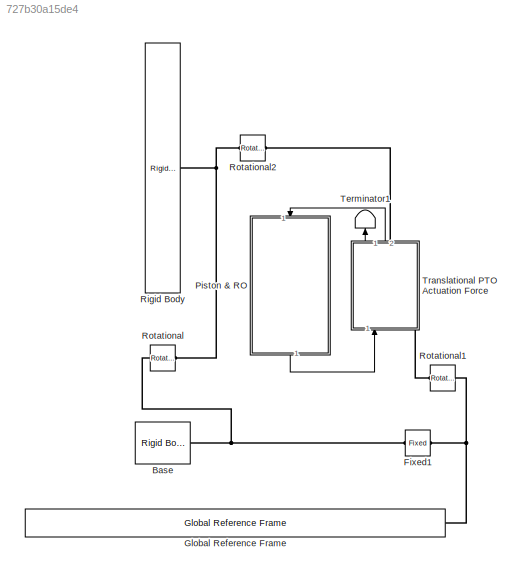
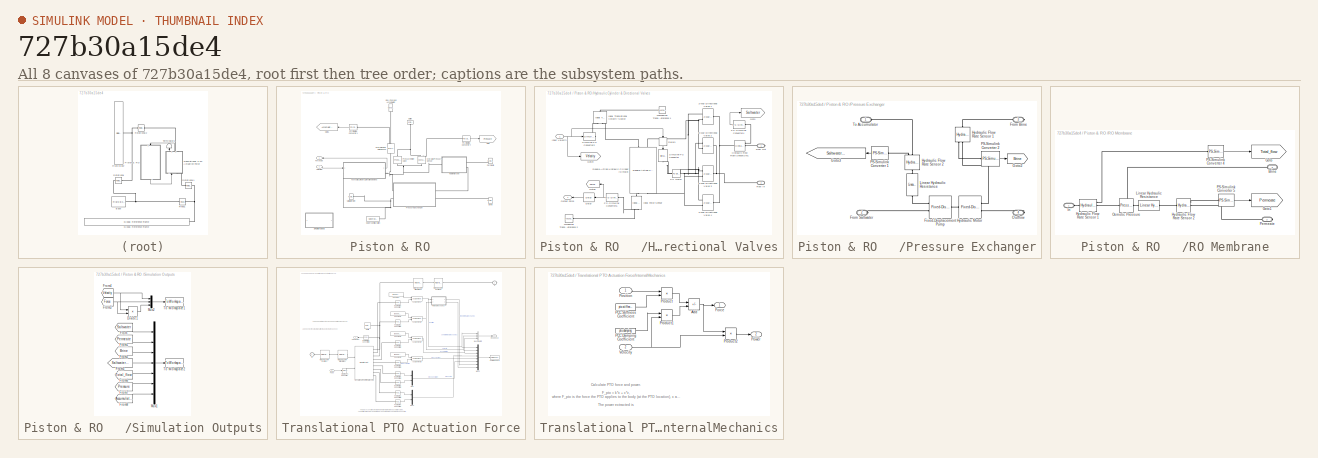
[diagram: thumbnail index - all 8 canvases of the model, root first then tree order]
MODEL slx_727b30a15de4
KIND model
CONFIG AbsTol = 1e-3
CONFIG EnableMultiTasking = on
CONFIG FixedStep = 0.01
CONFIG MaxStep = 0.01
CONFIG MinStep = auto
CONFIG RelTol = 1e-3
CONFIG SampleTimeConstraint = Unconstrained
CONFIG SolverName = ode4
CONFIG StartTime = 0
CONFIG StopTime = 300
BLOCK [Reference] Base  REF=WECSim_Lib_Body_Elements/Rigid Body
  AttributesFormatString = %<body>
  Ports = [0, 0, 0, 0, 0, 0, 1]
  SourceBlock = WECSim_Lib_Body_Elements/Rigid Body
  SourceType = Rigid Body
BLOCK [Reference] Fixed1  REF=WECSim_Lib_Constraints/Fixed
  AttributesFormatString = %<constraint>
  Ports = [0, 0, 0, 0, 0, 1, 1]
  SourceBlock = WECSim_Lib_Constraints/Fixed
  SourceType = Constraints
BLOCK [Reference] Global Reference Frame  REF=WECSim_Lib_Frames/Global Reference Frame
  Ports = [0, 0, 0, 0, 0, 0, 1]
  SourceBlock = WECSim_Lib_Frames/Global Reference Frame
  SourceType = Frames
BLOCK [SubSystem] Piston & RO   
  NameLocation = left
  Ports = [1, 1]
BLOCK [Reference] Piston & RO   /Brine   REF=fl_lib/Hydraulic/Hydraulic Elements/Hydraulic Reference
  Ports = [0, 0, 0, 0, 0, 1]
  SourceBlock = fl_lib/Hydraulic/Hydraulic Elements/Hydraulic Reference
  SourceType = Hydraulic Reference
BLOCK [Outport] Piston & RO   /Force Out
  NameLocation = top
  VectorParamsAs1DForOutWhenUnconnected = off
BLOCK [Reference] Piston & RO   /Gas-Charged Accumulator  REF=sh_lib/Accumulators/Gas-Charged
Accumulator
  NameLocation = right
  Ports = [0, 0, 0, 0, 0, 0, 1]
  SourceBlock = sh_lib/Accumulators/Gas-Charged\nAccumulator
  SourceType = Gas-Charged\nAccumulator
BLOCK [Goto] Piston & RO   /Goto
  GotoTag = Pressure
  TagVisibility = global
BLOCK [Goto] Piston & RO   /Goto1
  GotoTag = Accumulator
  TagVisibility = global
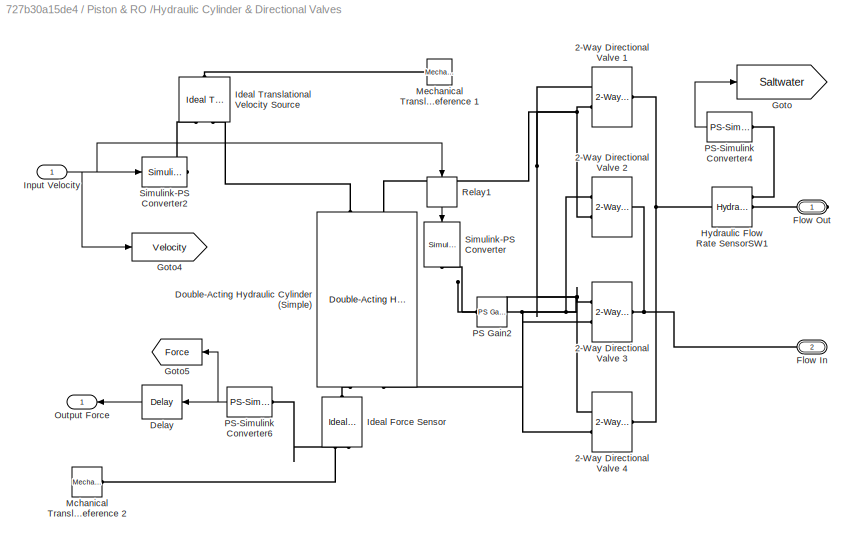
BLOCK [SubSystem] Piston & RO   /Hydraulic Cylinder & Directional Valves
  Ports = [1, 1, 0, 0, 0, 1, 1]
BLOCK [Reference] Piston & RO   /Hydraulic Cylinder & Directional Valves/2-Way Directional Valve 1  REF=sh_lib/Valves/Directional Valves/2-Way Directional
Valve
  Ports = [0, 0, 0, 0, 0, 2, 1]
  SourceBlock = sh_lib/Valves/Directional Valves/2-Way Directional\nValve
  SourceType = 2-Way Directional\nValve
BLOCK [Reference] Piston & RO   /Hydraulic Cylinder & Directional Valves/2-Way Directional Valve 2  REF=sh_lib/Valves/Directional Valves/2-Way Directional
Valve
  Ports = [0, 0, 0, 0, 0, 2, 1]
  SourceBlock = sh_lib/Valves/Directional Valves/2-Way Directional\nValve
  SourceType = 2-Way Directional\nValve
BLOCK [Reference] Piston & RO   /Hydraulic Cylinder & Directional Valves/2-Way Directional Valve 3  REF=sh_lib/Valves/Directional Valves/2-Way Directional
Valve
  Ports = [0, 0, 0, 0, 0, 2, 1]
  SourceBlock = sh_lib/Valves/Directional Valves/2-Way Directional\nValve
  SourceType = 2-Way Directional\nValve
BLOCK [Reference] Piston & RO   /Hydraulic Cylinder & Directional Valves/2-Way Directional Valve 4  REF=sh_lib/Valves/Directional Valves/2-Way Directional
Valve
  Ports = [0, 0, 0, 0, 0, 2, 1]
  SourceBlock = sh_lib/Valves/Directional Valves/2-Way Directional\nValve
  SourceType = 2-Way Directional\nValve
BLOCK [Delay] Piston & RO   /Hydraulic Cylinder & Directional Valves/Delay
  DelayLength = 1
  InitialCondition = 0
  InputPortMap = u0
  Ports = [1, 1]
BLOCK [Reference] Piston & RO   /Hydraulic Cylinder & Directional Valves/Double-Acting Hydraulic Cylinder (Simple)  REF=sh_lib/Hydraulic Cylinders/Double-Acting
Hydraulic Cylinder
(Simple)
  NameLocation = left
  Ports = [0, 0, 0, 0, 0, 2, 2]
  SourceBlock = sh_lib/Hydraulic Cylinders/Double-Acting\nHydraulic Cylinder\n(Simple)
  SourceType = Double-Acting\nHydraulic Cylinder\n(Simple)
BLOCK [PMIOPort] Piston & RO   /Hydraulic Cylinder & Directional Valves/Flow In
  NameLocation = top
  Port = 2
  Side = Left
BLOCK [PMIOPort] Piston & RO   /Hydraulic Cylinder & Directional Valves/Flow Out
  Side = Right
BLOCK [Goto] Piston & RO   /Hydraulic Cylinder & Directional Valves/Goto
  GotoTag = Saltwater
  TagVisibility = global
BLOCK [Goto] Piston & RO   /Hydraulic Cylinder & Directional Valves/Goto4
  GotoTag = Velocity
  TagVisibility = global
BLOCK [Goto] Piston & RO   /Hydraulic Cylinder & Directional Valves/Goto5
  GotoTag = Force
  NameLocation = top
  TagVisibility = global
BLOCK [Reference] Piston & RO   /Hydraulic Cylinder & Directional Valves/Hydraulic Flow Rate SensorSW1  REF=fl_lib/Hydraulic/Hydraulic Sensors/Hydraulic Flow Rate
Sensor
  Ports = [0, 0, 0, 0, 0, 1, 3]
  SourceBlock = fl_lib/Hydraulic/Hydraulic Sensors/Hydraulic Flow Rate\nSensor
  SourceType = Hydraulic Flow Rate\nSensor
BLOCK [Reference] Piston & RO   /Hydraulic Cylinder & Directional Valves/Ideal Force Sensor  REF=fl_lib/Mechanical/Mechanical Sensors/Ideal Force Sensor
  NameLocation = right
  Ports = [0, 0, 0, 0, 0, 1, 2]
  SourceBlock = fl_lib/Mechanical/Mechanical Sensors/Ideal Force Sensor
  SourceType = Ideal Force Sensor
BLOCK [Reference] Piston & RO   /Hydraulic Cylinder & Directional Valves/Ideal Translational Velocity Source  REF=fl_lib/Mechanical/Mechanical Sources/Ideal Translational
Velocity Source
  NameLocation = right
  Ports = [0, 0, 0, 0, 0, 1, 2]
  SourceBlock = fl_lib/Mechanical/Mechanical Sources/Ideal Translational\nVelocity Source
  SourceType = Ideal Translational\nVelocity Source
BLOCK [Inport] Piston & RO   /Hydraulic Cylinder & Directional Valves/Input Velocity
BLOCK [Reference] Piston & RO   /Hydraulic Cylinder & Directional Valves/Mchanical Translational Reference 2  REF=fl_lib/Mechanical/Translational
Elements/Mechanical
Translational
Reference
  NameLocation = top
  Ports = [0, 0, 0, 0, 0, 1]
  SourceBlock = fl_lib/Mechanical/Translational\nElements/Mechanical\nTranslational\nReference
  SourceType = Mechanical\nTranslational\nReference
BLOCK [Reference] Piston & RO   /Hydraulic Cylinder & Directional Valves/Mechanical Translational Reference 1  REF=fl_lib/Mechanical/Translational
Elements/Mechanical
Translational
Reference
  Ports = [0, 0, 0, 0, 0, 1]
  SourceBlock = fl_lib/Mechanical/Translational\nElements/Mechanical\nTranslational\nReference
  SourceType = Mechanical\nTranslational\nReference
BLOCK [Outport] Piston & RO   /Hydraulic Cylinder & Directional Valves/Output Force
  NameLocation = top
  VectorParamsAs1DForOutWhenUnconnected = off
BLOCK [Reference] Piston & RO   /Hydraulic Cylinder & Directional Valves/PS Gain2  REF=fl_ps_legacy_lib/Legacy Physical
Signals/Functions/PS Gain
  Ports = [0, 0, 0, 0, 0, 1, 1]
  SourceBlock = fl_ps_legacy_lib/Legacy Physical\nSignals/Functions/PS Gain
  SourceType = PS Gain
BLOCK [Reference] Piston & RO   /Hydraulic Cylinder & Directional Valves/PS-Simulink Converter4  REF=nesl_utility/PS-Simulink
Converter
  Ports = [0, 1, 0, 0, 0, 1]
  SourceBlock = nesl_utility/PS-Simulink\nConverter
  SourceType = PS-Simulink\nConverter
BLOCK [Reference] Piston & RO   /Hydraulic Cylinder & Directional Valves/PS-Simulink Converter6  REF=nesl_utility/PS-Simulink
Converter
  Ports = [0, 1, 0, 0, 0, 1]
  SourceBlock = nesl_utility/PS-Simulink\nConverter
  SourceType = PS-Simulink\nConverter
BLOCK [Relay] Piston & RO   /Hydraulic Cylinder & Directional Valves/Relay1
  NameLocation = right
  OffOutputValue = -1
  OffSwitchValue = 0
  OnSwitchValue = 0
  ZeroCross = off
BLOCK [Reference] Piston & RO   /Hydraulic Cylinder & Directional Valves/Simulink-PS Converter  REF=nesl_utility/Simulink-PS
Converter
  NameLocation = right
  Ports = [1, 0, 0, 0, 0, 0, 1]
  SourceBlock = nesl_utility/Simulink-PS\nConverter
  SourceType = Simulink-PS\nConverter
BLOCK [Reference] Piston & RO   /Hydraulic Cylinder & Directional Valves/Simulink-PS Converter2  REF=nesl_utility/Simulink-PS
Converter
  Ports = [1, 0, 0, 0, 0, 0, 1]
  SourceBlock = nesl_utility/Simulink-PS\nConverter
  SourceType = Simulink-PS\nConverter
BLOCK [Reference] Piston & RO   /Hydraulic Flow Rate Sensor  REF=fl_lib/Hydraulic/Hydraulic Sensors/Hydraulic Flow Rate
Sensor
  NameLocation = left
  Ports = [0, 0, 0, 0, 0, 1, 3]
  SourceBlock = fl_lib/Hydraulic/Hydraulic Sensors/Hydraulic Flow Rate\nSensor
  SourceType = Hydraulic Flow Rate\nSensor
BLOCK [Reference] Piston & RO   /Hydraulic Pressure Sensor  REF=fl_lib/Hydraulic/Hydraulic Sensors/Hydraulic Pressure
Sensor
  NameLocation = right
  Ports = [0, 0, 0, 0, 0, 1, 2]
  SourceBlock = fl_lib/Hydraulic/Hydraulic Sensors/Hydraulic Pressure\nSensor
  SourceType = Hydraulic Pressure\nSensor
BLOCK [Reference] Piston & RO   /Outlet  REF=fl_lib/Hydraulic/Hydraulic Elements/Hydraulic Reference
  NameLocation = left
  Ports = [0, 0, 0, 0, 0, 1]
  SourceBlock = fl_lib/Hydraulic/Hydraulic Elements/Hydraulic Reference
  SourceType = Hydraulic Reference
BLOCK [Reference] Piston & RO   /PS-Simulink Converter1  REF=nesl_utility/PS-Simulink
Converter
  Ports = [0, 1, 0, 0, 0, 1]
  SourceBlock = nesl_utility/PS-Simulink\nConverter
  SourceType = PS-Simulink\nConverter
BLOCK [Reference] Piston & RO   /PS-Simulink Converter4  REF=nesl_utility/PS-Simulink
Converter
  Ports = [0, 1, 0, 0, 0, 1]
  SourceBlock = nesl_utility/PS-Simulink\nConverter
  SourceType = PS-Simulink\nConverter
BLOCK [Reference] Piston & RO   /Permeate  REF=fl_lib/Hydraulic/Hydraulic Elements/Hydraulic Reference
  NameLocation = top
  Ports = [0, 0, 0, 0, 0, 1]
  SourceBlock = fl_lib/Hydraulic/Hydraulic Elements/Hydraulic Reference
  SourceType = Hydraulic Reference
BLOCK [SubSystem] Piston & RO   /Pressure Exchanger
  Ports = [0, 0, 0, 0, 0, 2, 2]
BLOCK [Reference] Piston & RO   /Pressure Exchanger/Fixed-Displacement Pump  REF=sh_lib/Pumps and Motors/Fixed-Displacement
Pump
  Ports = [0, 0, 0, 0, 0, 1, 2]
  SourceBlock = sh_lib/Pumps and Motors/Fixed-Displacement\nPump
  SourceType = Fixed-Displacement\nPump
BLOCK [PMIOPort] Piston & RO   /Pressure Exchanger/From Brine
  Port = 3
  Side = Right
BLOCK [PMIOPort] Piston & RO   /Pressure Exchanger/From Saltwater
  NameLocation = top
  Port = 2
  Side = Left
BLOCK [Goto] Piston & RO   /Pressure Exchanger/Goto2
  GotoTag = Brine
  TagVisibility = global
BLOCK [Goto] Piston & RO   /Pressure Exchanger/Goto3
  GotoTag = Saltwater_in_PE
  NameLocation = top
  TagVisibility = global
BLOCK [Reference] Piston & RO   /Pressure Exchanger/Hydraulic Flow Rate Sensor 1  REF=fl_lib/Hydraulic/Hydraulic Sensors/Hydraulic Flow Rate
Sensor
  NameLocation = left
  Ports = [0, 0, 0, 0, 0, 1, 3]
  SourceBlock = fl_lib/Hydraulic/Hydraulic Sensors/Hydraulic Flow Rate\nSensor
  SourceType = Hydraulic Flow Rate\nSensor
BLOCK [Reference] Piston & RO   /Pressure Exchanger/Hydraulic Flow Rate Sensor 2  REF=fl_lib/Hydraulic/Hydraulic Sensors/Hydraulic Flow Rate
Sensor
  NameLocation = right
  Ports = [0, 0, 0, 0, 0, 1, 3]
  SourceBlock = fl_lib/Hydraulic/Hydraulic Sensors/Hydraulic Flow Rate\nSensor
  SourceType = Hydraulic Flow Rate\nSensor
BLOCK [Reference] Piston & RO   /Pressure Exchanger/Hydraulic Motor  REF=sh_lib/Pumps and Motors/Fixed-Displacement
Motor
  NameLocation = top
  Ports = [0, 0, 0, 0, 0, 2, 1]
  SourceBlock = sh_lib/Pumps and Motors/Fixed-Displacement\nMotor
  SourceType = Fixed-Displacement\nMotor
BLOCK [Reference] Piston & RO   /Pressure Exchanger/Linear Hydraulic Resistance  REF=fl_lib/Hydraulic/Hydraulic Elements/Linear Hydraulic
Resistance
  NameLocation = left
  Ports = [0, 0, 0, 0, 0, 1, 1]
  SourceBlock = fl_lib/Hydraulic/Hydraulic Elements/Linear Hydraulic\nResistance
  SourceType = Linear Hydraulic\nResistance
BLOCK [PMIOPort] Piston & RO   /Pressure Exchanger/Outflow
  NameLocation = top
  Port = 4
  Side = Right
BLOCK [Reference] Piston & RO   /Pressure Exchanger/PS-Simulink Converter 1  REF=nesl_utility/PS-Simulink
Converter
  Ports = [0, 1, 0, 0, 0, 1]
  SourceBlock = nesl_utility/PS-Simulink\nConverter
  SourceType = PS-Simulink\nConverter
BLOCK [Reference] Piston & RO   /Pressure Exchanger/PS-Simulink Converter 2  REF=nesl_utility/PS-Simulink
Converter
  NameLocation = top
  Ports = [0, 1, 0, 0, 0, 1]
  SourceBlock = nesl_utility/PS-Simulink\nConverter
  SourceType = PS-Simulink\nConverter
BLOCK [PMIOPort] Piston & RO   /Pressure Exchanger/To Accumulator
  Side = Left
BLOCK [Reference] Piston & RO   /Pressure Relief Valve  REF=sh_lib/Valves/Pressure Control
Valves/Pressure Relief
Valve
  NameLocation = right
  Ports = [0, 0, 0, 0, 0, 1, 1]
  SourceBlock = sh_lib/Valves/Pressure Control\nValves/Pressure Relief\nValve
  SourceType = Pressure Relief\nValve
BLOCK [SubSystem] Piston & RO   /RO Membrane
  Ports = [0, 0, 0, 0, 0, 1, 2]
BLOCK [PMIOPort] Piston & RO   /RO Membrane/Brine
  NameLocation = top
  Port = 3
  Side = Right
BLOCK [Goto] Piston & RO   /RO Membrane/Goto
  GotoTag = Total_flow
  TagVisibility = global
BLOCK [Goto] Piston & RO   /RO Membrane/Goto1
  GotoTag = Permeate
  TagVisibility = global
BLOCK [Reference] Piston & RO   /RO Membrane/Hydraulic Flow Rate Sensor 1  REF=fl_lib/Hydraulic/Hydraulic Sensors/Hydraulic Flow Rate
Sensor
  Ports = [0, 0, 0, 0, 0, 1, 3]
  SourceBlock = fl_lib/Hydraulic/Hydraulic Sensors/Hydraulic Flow Rate\nSensor
  SourceType = Hydraulic Flow Rate\nSensor
BLOCK [Reference] Piston & RO   /RO Membrane/Hydraulic Flow Rate Sensor 2  REF=fl_lib/Hydraulic/Hydraulic Sensors/Hydraulic Flow Rate
Sensor
  Ports = [0, 0, 0, 0, 0, 1, 3]
  SourceBlock = fl_lib/Hydraulic/Hydraulic Sensors/Hydraulic Flow Rate\nSensor
  SourceType = Hydraulic Flow Rate\nSensor
BLOCK [PMIOPort] Piston & RO   /RO Membrane/In
  Side = Left
BLOCK [Reference] Piston & RO   /RO Membrane/Linear Hydraulic Resistance  REF=fl_lib/Hydraulic/Hydraulic Elements/Linear Hydraulic
Resistance
  Ports = [0, 0, 0, 0, 0, 1, 1]
  SourceBlock = fl_lib/Hydraulic/Hydraulic Elements/Linear Hydraulic\nResistance
  SourceType = Linear Hydraulic\nResistance
BLOCK [Reference] Piston & RO   /RO Membrane/Osmotic Pressure  REF=sh_lib/Valves/Pressure Control
Valves/Pressure Relief
Valve
  NameLocation = top
  Ports = [0, 0, 0, 0, 0, 1, 1]
  SourceBlock = sh_lib/Valves/Pressure Control\nValves/Pressure Relief\nValve
  SourceType = Pressure Relief\nValve
BLOCK [Reference] Piston & RO   /RO Membrane/PS-Simulink Converter 4  REF=nesl_utility/PS-Simulink
Converter
  NameLocation = top
  Ports = [0, 1, 0, 0, 0, 1]
  SourceBlock = nesl_utility/PS-Simulink\nConverter
  SourceType = PS-Simulink\nConverter
BLOCK [Reference] Piston & RO   /RO Membrane/PS-Simulink Converter 5  REF=nesl_utility/PS-Simulink
Converter
  NameLocation = top
  Ports = [0, 1, 0, 0, 0, 1]
  SourceBlock = nesl_utility/PS-Simulink\nConverter
  SourceType = PS-Simulink\nConverter
BLOCK [PMIOPort] Piston & RO   /RO Membrane/Permeate
  Port = 2
  Side = Right
BLOCK [Reference] Piston & RO   /Saltwater Inlet  REF=fl_lib/Hydraulic/Hydraulic Elements/Hydraulic Reference
  Ports = [0, 0, 0, 0, 0, 1]
  SourceBlock = fl_lib/Hydraulic/Hydraulic Elements/Hydraulic Reference
  SourceType = Hydraulic Reference
BLOCK [SubSystem] Piston & RO   /Simulation Outputs
  Ports = []
BLOCK [Product] Piston & RO   /Simulation Outputs/Divide1
  Inputs = **
  Ports = [2, 1]
BLOCK [From] Piston & RO   /Simulation Outputs/From
  GotoTag = Saltwater
  TagVisibility = global
BLOCK [From] Piston & RO   /Simulation Outputs/From1
  GotoTag = Permeate
  TagVisibility = global
BLOCK [From] Piston & RO   /Simulation Outputs/From2
  GotoTag = Brine
  TagVisibility = global
BLOCK [From] Piston & RO   /Simulation Outputs/From3
  GotoTag = Saltwater_in_PE
  TagVisibility = global
BLOCK [From] Piston & RO   /Simulation Outputs/From4
  GotoTag = Velocity
  TagVisibility = global
BLOCK [From] Piston & RO   /Simulation Outputs/From5
  GotoTag = Force
  TagVisibility = global
BLOCK [From] Piston & RO   /Simulation Outputs/From6
  GotoTag = Total_flow
  TagVisibility = global
BLOCK [From] Piston & RO   /Simulation Outputs/From7
  GotoTag = Pressure
  TagVisibility = global
BLOCK [From] Piston & RO   /Simulation Outputs/From8
  GotoTag = Accumulator
  TagVisibility = global
BLOCK [Mux] Piston & RO   /Simulation Outputs/Mux1
  DisplayOption = bar
  Inputs = 7
  Ports = [7, 1]
BLOCK [Mux] Piston & RO   /Simulation Outputs/Mux2
  DisplayOption = bar
  Inputs = 3
  Ports = [3, 1]
BLOCK [ToWorkspace] Piston & RO   /Simulation Outputs/To Workspace1
  MaxDataPoints = inf
  NameLocation = top
  Ports = [1]
  SampleTime = simu.dtOut
  SaveFormat = Structure With Time
  VariableName = simout
BLOCK [ToWorkspace] Piston & RO   /Simulation Outputs/To Workspace2
  MaxDataPoints = inf
  NameLocation = top
  Ports = [1]
  SampleTime = simu.dtOut
  SaveFormat = Structure With Time
  VariableName = simout1
BLOCK [Reference] Piston & RO   /Solver Configuration  REF=nesl_utility/Solver
Configuration
  Ports = [0, 0, 0, 0, 0, 0, 1]
  SourceBlock = nesl_utility/Solver\nConfiguration
  SourceType = Solver\nConfiguration
BLOCK [Inport] Piston & RO   /Velocity In
BLOCK [Reference] Rigid Body  REF=WECSim_Lib_Body_Elements/Rigid Body
  AttributesFormatString = %<body>
  Ports = [0, 0, 0, 0, 0, 0, 1]
  SourceBlock = WECSim_Lib_Body_Elements/Rigid Body
  SourceType = Rigid Body
BLOCK [Reference] Rotational  REF=WECSim_Lib_Constraints/Rotational
  AttributesFormatString = %<constraint>
  Ports = [0, 0, 0, 0, 0, 1, 1]
  SourceBlock = WECSim_Lib_Constraints/Rotational
  SourceType = Constraints
BLOCK [Reference] Rotational1  REF=WECSim_Lib_Constraints/Rotational
  AttributesFormatString = %<constraint>
  Ports = [0, 0, 0, 0, 0, 1, 1]
  SourceBlock = WECSim_Lib_Constraints/Rotational
  SourceType = Constraints
BLOCK [Reference] Rotational2  REF=WECSim_Lib_Constraints/Rotational
  AttributesFormatString = %<constraint>
  Ports = [0, 0, 0, 0, 0, 1, 1]
  SourceBlock = WECSim_Lib_Constraints/Rotational
  SourceType = Constraints
BLOCK [Terminator] Terminator1
  NameLocation = top
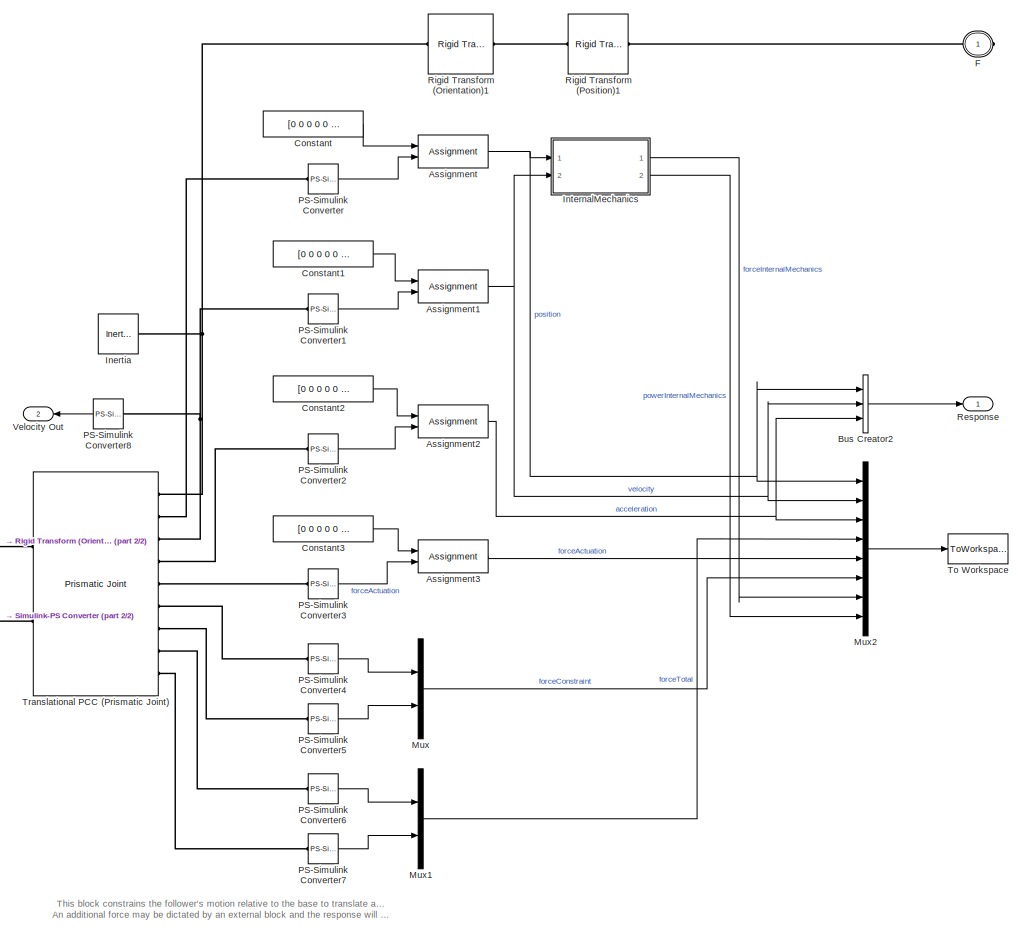
[diagram: Translational PTO Actuation Force - part 1/2, most of the canvas]
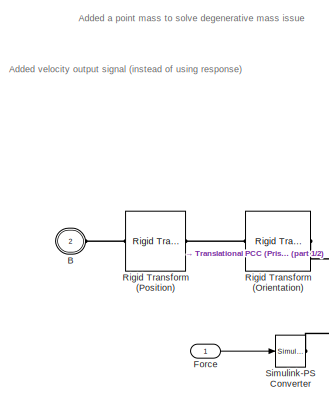
[diagram: Translational PTO Actuation Force - part 2/2, middle left region]
BLOCK [SubSystem] Translational PTO Actuation Force
  AncestorBlock = WECSim_Lib_PTOs/Translational PTO\nActuation Force
  AttributesFormatString = %<pto>
  NameLocation = right
  Ports = [1, 2, 0, 0, 0, 1, 1]
BLOCK [Assignment] Translational PTO Actuation Force/Assignment
  IndexOptions = Index vector (dialog)
  Indices = 3
  OutputSizes = 1
  Ports = [2, 1]
BLOCK [Assignment] Translational PTO Actuation Force/Assignment1
  IndexOptions = Index vector (dialog)
  Indices = 3
  OutputSizes = 1
  Ports = [2, 1]
BLOCK [Assignment] Translational PTO Actuation Force/Assignment2
  IndexOptions = Index vector (dialog)
  Indices = 3
  OutputSizes = 1
  Ports = [2, 1]
BLOCK [Assignment] Translational PTO Actuation Force/Assignment3
  IndexOptions = Index vector (dialog)
  Indices = 3
  OutputSizes = 1
  Ports = [2, 1]
BLOCK [PMIOPort] Translational PTO Actuation Force/B
  Port = 2
  Side = Left
BLOCK [BusCreator] Translational PTO Actuation Force/Bus Creator2
  DisplayOption = bar
  InheritFromInputs = on
  Inputs = 3
  Ports = [3, 1]
BLOCK [Constant] Translational PTO Actuation Force/Constant
  Value = [0 0 0 0 0 0]
BLOCK [Constant] Translational PTO Actuation Force/Constant1
  Value = [0 0 0 0 0 0]
BLOCK [Constant] Translational PTO Actuation Force/Constant2
  Value = [0 0 0 0 0 0]
BLOCK [Constant] Translational PTO Actuation Force/Constant3
  Value = [0 0 0 0 0 0]
BLOCK [PMIOPort] Translational PTO Actuation Force/F
  Side = Right
BLOCK [Inport] Translational PTO Actuation Force/Force
BLOCK [Reference] Translational PTO Actuation Force/Inertia  REF=sm_lib/Body Elements/Inertia
  Ports = [0, 0, 0, 0, 0, 0, 1]
  SourceBlock = sm_lib/Body Elements/Inertia
  SourceType = Inertia
BLOCK [SubSystem] Translational PTO Actuation Force/InternalMechanics
  Ports = [2, 2]
BLOCK [Sum] Translational PTO Actuation Force/InternalMechanics/Add
  IconShape = rectangular
  Inputs = --
  Ports = [2, 1]
BLOCK [Outport] Translational PTO Actuation Force/InternalMechanics/Force
BLOCK [Constant] Translational PTO Actuation Force/InternalMechanics/PCC Damping Coefficient
  Value = pto.damping
BLOCK [Constant] Translational PTO Actuation Force/InternalMechanics/PCC Stiffness Coefficient
  Value = pto.stiffness
BLOCK [Inport] Translational PTO Actuation Force/InternalMechanics/Position
BLOCK [Outport] Translational PTO Actuation Force/InternalMechanics/Power
  Port = 2
BLOCK [Product] Translational PTO Actuation Force/InternalMechanics/Product
  Inputs = **
  Ports = [2, 1]
BLOCK [Product] Translational PTO Actuation Force/InternalMechanics/Product1
  Inputs = **
  Ports = [2, 1]
BLOCK [Product] Translational PTO Actuation Force/InternalMechanics/Product2
  Inputs = **
  Ports = [2, 1]
BLOCK [Inport] Translational PTO Actuation Force/InternalMechanics/Velocity
  Port = 2
BLOCK [Mux] Translational PTO Actuation Force/Mux
  DisplayOption = bar
  Inputs = 2
  Ports = [2, 1]
BLOCK [Mux] Translational PTO Actuation Force/Mux1
  DisplayOption = bar
  Inputs = 2
  Ports = [2, 1]
BLOCK [Mux] Translational PTO Actuation Force/Mux2
  DisplayOption = bar
  Inputs = 8
  Ports = [8, 1]
BLOCK [Reference] Translational PTO Actuation Force/PS-Simulink Converter  REF=nesl_utility/PS-Simulink
Converter
  Ports = [0, 1, 0, 0, 0, 1]
  SourceBlock = nesl_utility/PS-Simulink\nConverter
  SourceType = PS-Simulink\nConverter
BLOCK [Reference] Translational PTO Actuation Force/PS-Simulink Converter1  REF=nesl_utility/PS-Simulink
Converter
  Ports = [0, 1, 0, 0, 0, 1]
  SourceBlock = nesl_utility/PS-Simulink\nConverter
  SourceType = PS-Simulink\nConverter
BLOCK [Reference] Translational PTO Actuation Force/PS-Simulink Converter2  REF=nesl_utility/PS-Simulink
Converter
  Ports = [0, 1, 0, 0, 0, 1]
  SourceBlock = nesl_utility/PS-Simulink\nConverter
  SourceType = PS-Simulink\nConverter
BLOCK [Reference] Translational PTO Actuation Force/PS-Simulink Converter3  REF=nesl_utility/PS-Simulink
Converter
  Ports = [0, 1, 0, 0, 0, 1]
  SourceBlock = nesl_utility/PS-Simulink\nConverter
  SourceType = PS-Simulink\nConverter
BLOCK [Reference] Translational PTO Actuation Force/PS-Simulink Converter4  REF=nesl_utility/PS-Simulink
Converter
  Ports = [0, 1, 0, 0, 0, 1]
  SourceBlock = nesl_utility/PS-Simulink\nConverter
  SourceType = PS-Simulink\nConverter
BLOCK [Reference] Translational PTO Actuation Force/PS-Simulink Converter5  REF=nesl_utility/PS-Simulink
Converter
  Ports = [0, 1, 0, 0, 0, 1]
  SourceBlock = nesl_utility/PS-Simulink\nConverter
  SourceType = PS-Simulink\nConverter
BLOCK [Reference] Translational PTO Actuation Force/PS-Simulink Converter6  REF=nesl_utility/PS-Simulink
Converter
  Ports = [0, 1, 0, 0, 0, 1]
  SourceBlock = nesl_utility/PS-Simulink\nConverter
  SourceType = PS-Simulink\nConverter
BLOCK [Reference] Translational PTO Actuation Force/PS-Simulink Converter7  REF=nesl_utility/PS-Simulink
Converter
  Ports = [0, 1, 0, 0, 0, 1]
  SourceBlock = nesl_utility/PS-Simulink\nConverter
  SourceType = PS-Simulink\nConverter
BLOCK [Reference] Translational PTO Actuation Force/PS-Simulink Converter8  REF=nesl_utility/PS-Simulink
Converter
  Ports = [0, 1, 0, 0, 0, 1]
  SourceBlock = nesl_utility/PS-Simulink\nConverter
  SourceType = PS-Simulink\nConverter
BLOCK [Outport] Translational PTO Actuation Force/Response
BLOCK [Reference] Translational PTO Actuation Force/Rigid Transform (Orientation)  REF=sm_lib/Frames and
Transforms/Rigid
Transform
  Ports = [0, 0, 0, 0, 0, 1, 1]
  SourceBlock = sm_lib/Frames and\nTransforms/Rigid\nTransform
  SourceType = Rigid\nTransform
BLOCK [Reference] Translational PTO Actuation Force/Rigid Transform (Orientation)1  REF=sm_lib/Frames and
Transforms/Rigid
Transform
  Ports = [0, 0, 0, 0, 0, 1, 1]
  SourceBlock = sm_lib/Frames and\nTransforms/Rigid\nTransform
  SourceType = Rigid\nTransform
BLOCK [Reference] Translational PTO Actuation Force/Rigid Transform (Position)  REF=sm_lib/Frames and
Transforms/Rigid
Transform
  Ports = [0, 0, 0, 0, 0, 1, 1]
  SourceBlock = sm_lib/Frames and\nTransforms/Rigid\nTransform
  SourceType = Rigid\nTransform
BLOCK [Reference] Translational PTO Actuation Force/Rigid Transform (Position)1  REF=sm_lib/Frames and
Transforms/Rigid
Transform
  Ports = [0, 0, 0, 0, 0, 1, 1]
  SourceBlock = sm_lib/Frames and\nTransforms/Rigid\nTransform
  SourceType = Rigid\nTransform
BLOCK [Reference] Translational PTO Actuation Force/Simulink-PS Converter  REF=nesl_utility/Simulink-PS
Converter
  Ports = [1, 0, 0, 0, 0, 0, 1]
  SourceBlock = nesl_utility/Simulink-PS\nConverter
  SourceType = Simulink-PS\nConverter
BLOCK [ToWorkspace] Translational PTO Actuation Force/To Workspace
  FixptAsFi = on
  MaxDataPoints = inf
  Ports = [1]
  SampleTime = simu.dtOut
  SaveFormat = Structure With Time
  VariableName = pto_out
BLOCK [Reference] Translational PTO Actuation Force/Translational PCC (Prismatic Joint)  REF=sm_lib/Joints/Prismatic
Joint
  Ports = [0, 0, 0, 0, 0, 2, 9]
  SourceBlock = sm_lib/Joints/Prismatic\nJoint
  SourceType = Prismatic\nJoint
BLOCK [Outport] Translational PTO Actuation Force/Velocity Out
  Port = 2
  VectorParamsAs1DForOutWhenUnconnected = off
ANNOTATION Translational PTO Actuation Force: This block constrains the follower's motion relative to the base to translate along the PTO's z-axis. The forces required for the constraint and the updated response are output of the joint, converted to Simulink, assigned to the correct dimension for wecSim, and output. An additional force may be dictated by an external block and the response will take this quantity into account.
ANNOTATION Translational PTO Actuation Force: Added a point mass to solve degenerative mass issue
ANNOTATION Translational PTO Actuation Force: Added velocity output signal (instead of using response)
ANNOTATION Translational PTO Actuation Force/InternalMechanics: Calculate PTO force and power. F_pto = k*x + c*v, where F_pto is the force the PTO applies to the body (at the PTO location), x and v are the joint position and velocity. The power extracted is P_pto = F_pto * v
LINE Piston & RO   :1 -> Translational PTO Actuation Force:1
LINE Translational PTO Actuation Force:1 -> Terminator1:1
LINE Translational PTO Actuation Force:2 -> Piston & RO   :1
PNET net1: Base:RConn1 -- Fixed1:RConn1 -- Rotational:LConn1
PNET net2: Fixed1:LConn1 -- Global Reference Frame:RConn1 -- Rotational1:LConn1
PNET net3: Rigid Body:RConn1 -- Rotational2:RConn1 -- Rotational:RConn1
PLINE Rotational1:RConn1 -- Translational PTO Actuation Force:LConn1
PLINE Rotational2:LConn1 -- Translational PTO Actuation Force:RConn1
note: PNET lines group multi-terminal physical nets as a canonical sorted terminal list (undirected conserving connections); 2-terminal nets keep the pairwise PLINE form
